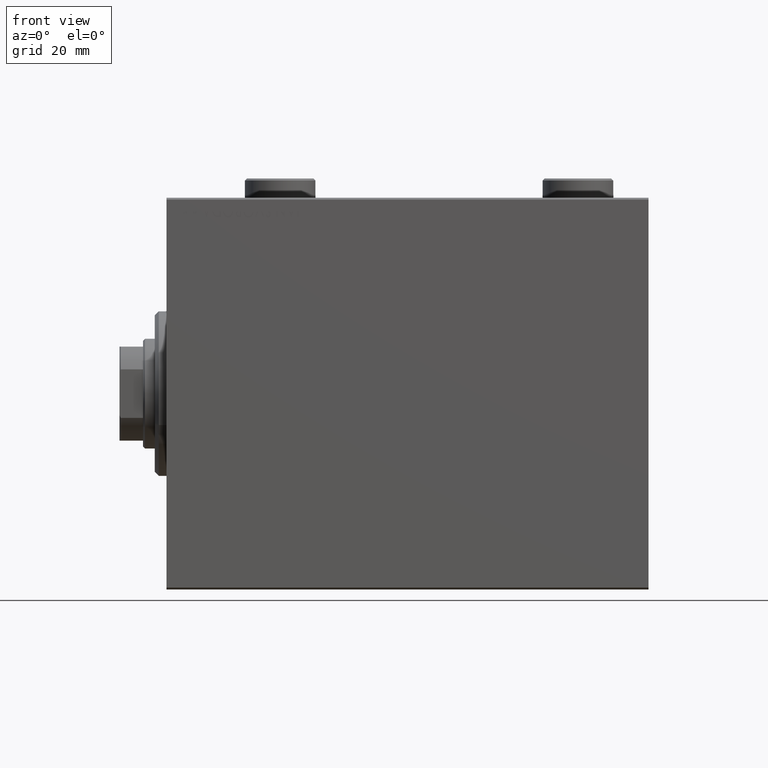
[diagram: clean part render]
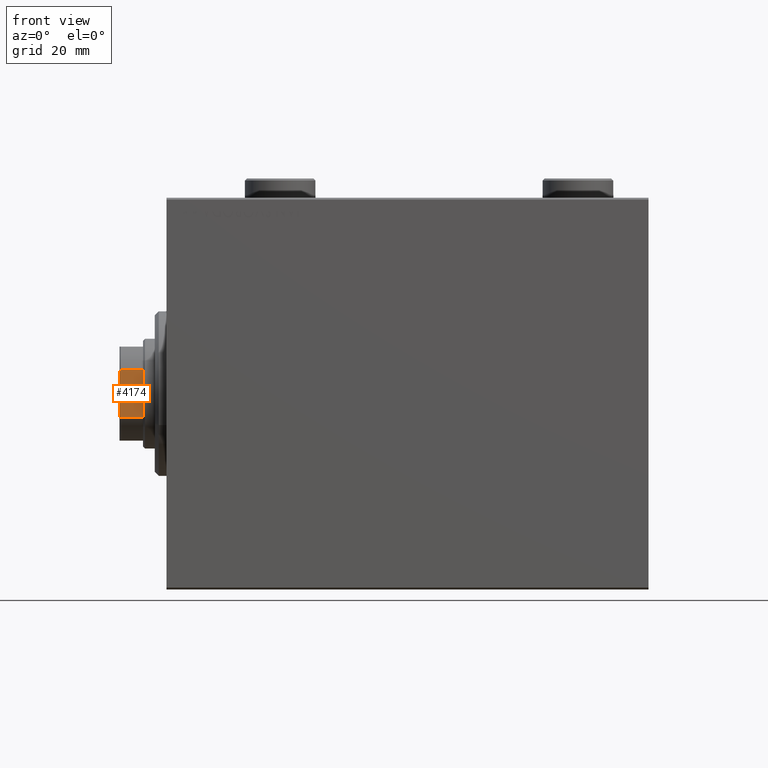
[diagram: same view with one face highlighted and labeled with its STEP entity id]
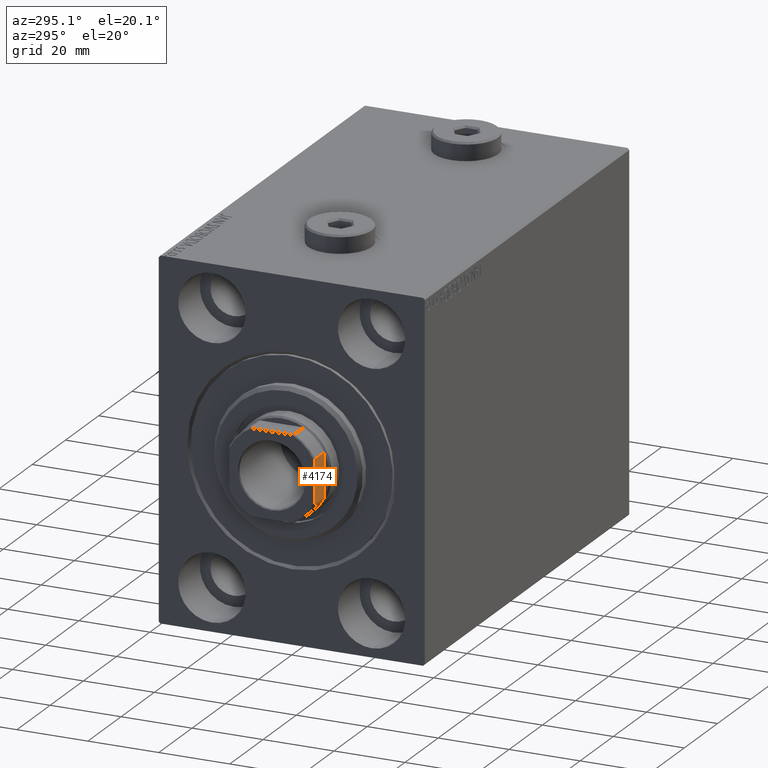
[diagram: same view with one face highlighted and labeled with its STEP entity id]
A machine part, front view. The second image highlights one B-rep face of the part: STEP entity #4174.
A second angle (auxiliary view) of the same face is appended — the face is thin or edge-on in the first view.
In plain terms, the highlighted planar face has unit normal (0, 1, 0).
Its self-contained STEP definition (entity closure, byte-faithful):
#896 = DIRECTION ( 'NONE',  ( -0.000000000000000000, -0.000000000000000000, 1.000000000000000000 ) ) ;
#1370 = CARTESIAN_POINT ( 'NONE',  ( -6.184658438426501093, -11.99999999999999645, 120.7000000000000597 ) ) ;
#2960 = CARTESIAN_POINT ( 'NONE',  ( -5.957846001622748133, -12.00000000000000355, 120.8039079593495586 ) ) ;
#3172 = CARTESIAN_POINT ( 'NONE',  ( -5.729389212963500455, -12.00000000000000355, 120.9040582041574368 ) ) ;
#4109 = DIRECTION ( 'NONE',  ( -0.000000000000000000, -0.000000000000000000, 1.000000000000000000 ) ) ;
#4174 = ADVANCED_FACE ( 'NONE', ( #18425 ), #43393, .F. ) ;
#4280 = VECTOR ( 'NONE', #32473, 1000.000000000000000 ) ;
#4774 = AXIS2_PLACEMENT_3D ( 'NONE', #36743, #5130, #36522 ) ;
#5130 = DIRECTION ( 'NONE',  ( 0.000000000000000000, 1.000000000000000000, 0.000000000000000000 ) ) ;
#5660 = EDGE_CURVE ( 'NONE', #22275, #43874, #7764, .T. ) ;
#5763 = ORIENTED_EDGE ( 'NONE', *, *, #40443, .T. ) ;
#5829 = CARTESIAN_POINT ( 'NONE',  ( 5.499090833947038348, -12.00000000000000355, 121.0000000000000142 ) ) ;
#7517 = EDGE_CURVE ( 'NONE', #23656, #19409, #35505, .T. ) ;
#7666 = EDGE_CURVE ( 'NONE', #19409, #27971, #12492, .T. ) ;
#7764 = LINE ( 'NONE', #22001, #16516 ) ;
#9097 = CARTESIAN_POINT ( 'NONE',  ( -5.499090833947095192, -12.00000000000000355, 121.0000000000000142 ) ) ;
#9363 = CARTESIAN_POINT ( 'NONE',  ( 5.499090833947038348, -12.00000000000000355, 121.0000000000000142 ) ) ;
#10794 = ORIENTED_EDGE ( 'NONE', *, *, #7517, .T. ) ;
#11648 = VECTOR ( 'NONE', #12325, 1000.000000000000000 ) ;
#12103 = LINE ( 'NONE', #16001, #11648 ) ;
#12325 = DIRECTION ( 'NONE',  ( 1.000000000000000000, 0.000000000000000000, 0.000000000000000000 ) ) ;
#12492 = B_SPLINE_CURVE_WITH_KNOTS ( 'NONE', 3,
 ( #12795, #30439, #30215, #9363 ),
 .UNSPECIFIED., .F., .F.,
 ( 4, 4 ),
 ( 0.000000000000000000, 0.0007483334419306048556 ),
 .UNSPECIFIED. ) ;
#12795 = CARTESIAN_POINT ( 'NONE',  ( 6.184658438426501093, -11.99999999999999645, 120.7000000000000171 ) ) ;
#13861 = ORIENTED_EDGE ( 'NONE', *, *, #44271, .T. ) ;
#14720 = EDGE_LOOP ( 'NONE', ( #10794, #26258, #16216, #5763, #36268, #13861 ) ) ;
#16001 = CARTESIAN_POINT ( 'NONE',  ( -11.99999999999999822, -12.00000000000000355, 115.0000000000000000 ) ) ;
#16216 = ORIENTED_EDGE ( 'NONE', *, *, #43435, .F. ) ;
#16516 = VECTOR ( 'NONE', #896, 1000.000000000000000 ) ;
#16672 = CARTESIAN_POINT ( 'NONE',  ( -6.184658438426501093, -11.99999999999999645, 115.0000000000000142 ) ) ;
#16713 = CARTESIAN_POINT ( 'NONE',  ( 6.184658438426501093, -11.99999999999999645, 115.0000000000000142 ) ) ;
#18425 = FACE_OUTER_BOUND ( 'NONE', #14720, .T. ) ;
#19409 = VERTEX_POINT ( 'NONE', #27058 ) ;
#22001 = CARTESIAN_POINT ( 'NONE',  ( -6.184658438426501093, -11.99999999999999645, -0.001000000000001000089 ) ) ;
#22275 = VERTEX_POINT ( 'NONE', #16672 ) ;
#23656 = VERTEX_POINT ( 'NONE', #16713 ) ;
#24278 = CARTESIAN_POINT ( 'NONE',  ( -6.184658438426501093, -11.99999999999999645, 120.7000000000000597 ) ) ;
#25960 = VERTEX_POINT ( 'NONE', #9097 ) ;
#26258 = ORIENTED_EDGE ( 'NONE', *, *, #7666, .T. ) ;
#27058 = CARTESIAN_POINT ( 'NONE',  ( 6.184658438426501093, -11.99999999999999645, 120.7000000000000171 ) ) ;
#27971 = VERTEX_POINT ( 'NONE', #5829 ) ;
#30123 = LINE ( 'NONE', #33786, #4280 ) ;
#30215 = CARTESIAN_POINT ( 'NONE',  ( 5.729389212963464040, -12.00000000000000355, 120.9040582041574226 ) ) ;
#30439 = CARTESIAN_POINT ( 'NONE',  ( 5.957846001622727705, -11.99999999999999645, 120.8039079593495444 ) ) ;
#32473 = DIRECTION ( 'NONE',  ( 1.000000000000000000, 0.000000000000000000, 0.000000000000000000 ) ) ;
#33786 = CARTESIAN_POINT ( 'NONE',  ( -11.99999999999999822, -12.00000000000000355, 121.0000000000000142 ) ) ;
#34760 = VECTOR ( 'NONE', #4109, 1000.000000000000000 ) ;
#35231 = B_SPLINE_CURVE_WITH_KNOTS ( 'NONE', 3,
 ( #39885, #3172, #2960, #24278 ),
 .UNSPECIFIED., .F., .F.,
 ( 4, 4 ),
 ( 0.000000000000000000, 0.0007483334419305356835 ),
 .UNSPECIFIED. ) ;
#35505 = LINE ( 'NONE', #45148, #34760 ) ;
#36268 = ORIENTED_EDGE ( 'NONE', *, *, #5660, .F. ) ;
#36522 = DIRECTION ( 'NONE',  ( 0.000000000000000000, -0.000000000000000000, 1.000000000000000000 ) ) ;
#36743 = CARTESIAN_POINT ( 'NONE',  ( -11.99999999999999822, -12.00000000000000355, 121.0000000000000142 ) ) ;
#39885 = CARTESIAN_POINT ( 'NONE',  ( -5.499090833947095192, -12.00000000000000355, 121.0000000000000142 ) ) ;
#40443 = EDGE_CURVE ( 'NONE', #25960, #43874, #35231, .T. ) ;
#43393 = PLANE ( 'NONE',  #4774 ) ;
#43435 = EDGE_CURVE ( 'NONE', #25960, #27971, #30123, .T. ) ;
#43874 = VERTEX_POINT ( 'NONE', #1370 ) ;
#44271 = EDGE_CURVE ( 'NONE', #22275, #23656, #12103, .T. ) ;
#45148 = CARTESIAN_POINT ( 'NONE',  ( 6.184658438426501093, -11.99999999999999645, -0.001000000000001000089 ) ) ;